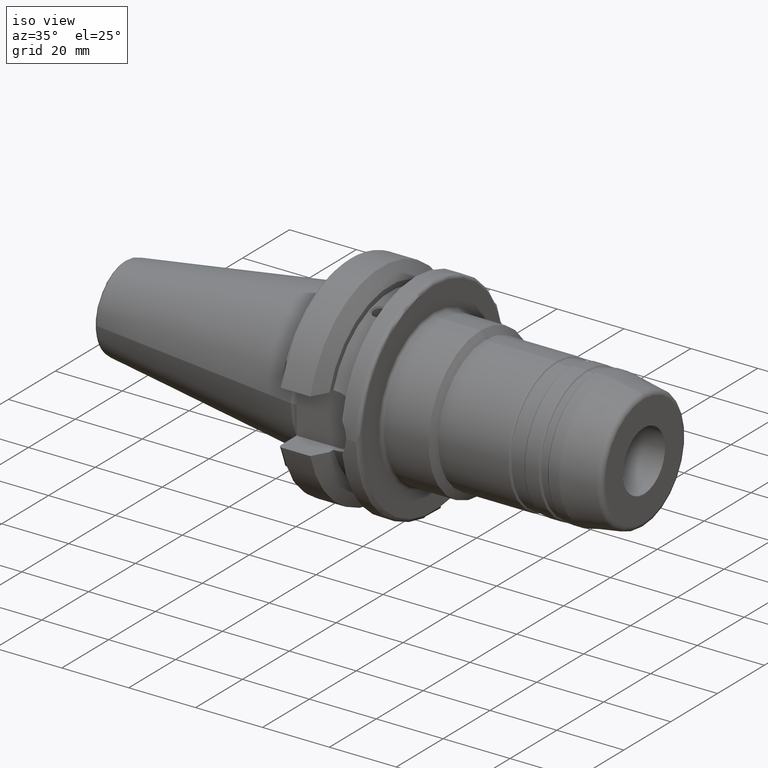
[diagram: clean part render]
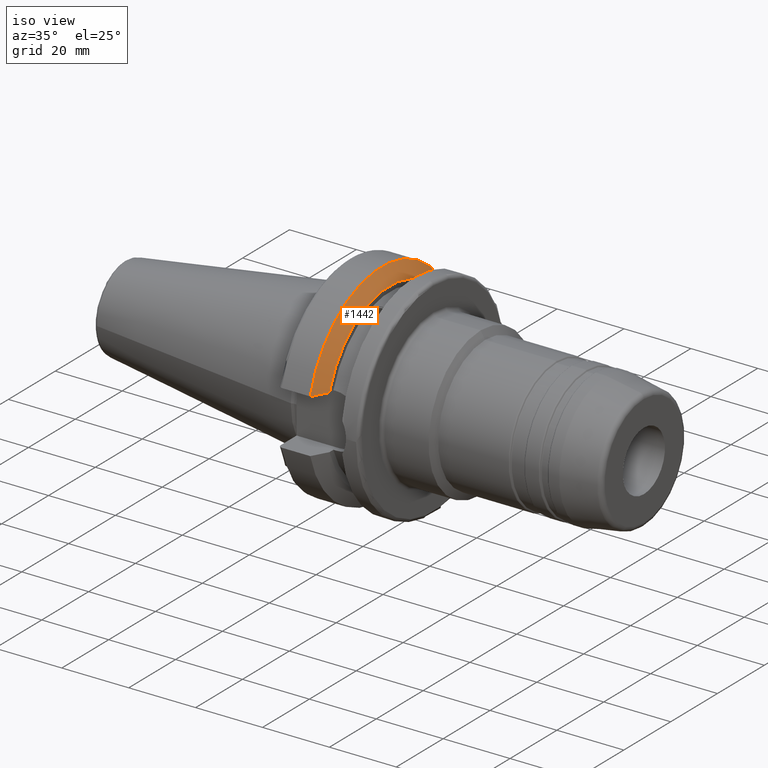
[diagram: same view with one face highlighted and labeled with its STEP entity id]
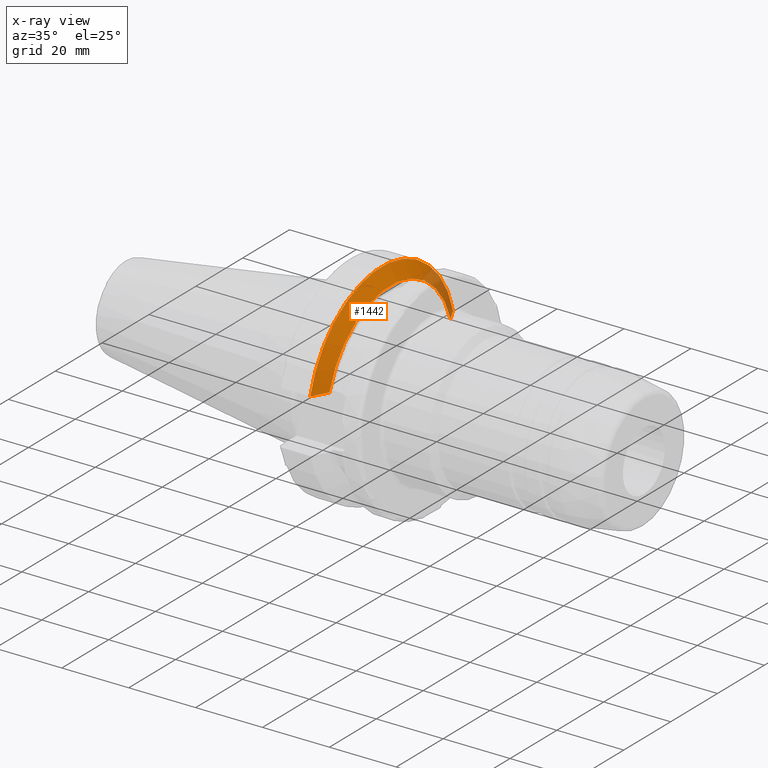
[diagram: x-ray of the same camera — body ghosted, the highlighted face saturated]
A machine part, iso view. The second image highlights one B-rep face of the part: STEP entity #1442.
The next image is the same camera in x-ray: the body ghosted, the highlighted face saturated — about 11% of this face is hidden behind the body in this view.
In plain terms, the highlighted conical surface has half-angle 60.125 deg.
Its self-contained STEP definition (entity closure, byte-faithful):
#15=(
BOUNDED_CURVE()
B_SPLINE_CURVE(2,(#2584,#2585,#2586),.UNSPECIFIED.,.F.,.F.)
B_SPLINE_CURVE_WITH_KNOTS((3,3),(0.,0.523582790832811),.UNSPECIFIED.)
CURVE()
GEOMETRIC_REPRESENTATION_ITEM()
RATIONAL_B_SPLINE_CURVE((1.,1.0030736009757,1.))
REPRESENTATION_ITEM('')
);
#18=(
BOUNDED_CURVE()
B_SPLINE_CURVE(2,(#2744,#2745,#2746),.UNSPECIFIED.,.F.,.F.)
B_SPLINE_CURVE_WITH_KNOTS((3,3),(0.,0.523582790832811),.UNSPECIFIED.)
CURVE()
GEOMETRIC_REPRESENTATION_ITEM()
RATIONAL_B_SPLINE_CURVE((1.,1.0030736009757,1.))
REPRESENTATION_ITEM('')
);
#91=CONICAL_SURFACE('',#1663,29.2970358274569,1.0493792127616);
#215=FACE_OUTER_BOUND('',#319,.T.);
#319=EDGE_LOOP('',(#1301,#1302,#1303,#1304));
#556=CIRCLE('',#1662,31.5000000000001);
#557=CIRCLE('',#1664,27.0940716549138);
#644=VERTEX_POINT('',#2581);
#645=VERTEX_POINT('',#2583);
#676=VERTEX_POINT('',#2741);
#677=VERTEX_POINT('',#2743);
#823=EDGE_CURVE('',#645,#644,#15,.T.);
#868=EDGE_CURVE('',#677,#676,#18,.T.);
#899=EDGE_CURVE('',#676,#645,#556,.T.);
#900=EDGE_CURVE('',#677,#644,#557,.T.);
#1301=ORIENTED_EDGE('',*,*,#823,.T.);
#1302=ORIENTED_EDGE('',*,*,#900,.F.);
#1303=ORIENTED_EDGE('',*,*,#868,.T.);
#1304=ORIENTED_EDGE('',*,*,#899,.T.);
#1442=ADVANCED_FACE('',(#215),#91,.T.);
#1662=AXIS2_PLACEMENT_3D('',#2809,#2128,#2129);
#1663=AXIS2_PLACEMENT_3D('',#2810,#2130,#2131);
#1664=AXIS2_PLACEMENT_3D('',#2811,#2132,#2133);
#2128=DIRECTION('center_axis',(1.,0.,0.));
#2129=DIRECTION('ref_axis',(0.,0.,-1.));
#2130=DIRECTION('center_axis',(-1.,0.,0.));
#2131=DIRECTION('ref_axis',(0.,1.,0.));
#2132=DIRECTION('center_axis',(1.,0.,0.));
#2133=DIRECTION('ref_axis',(0.,0.,-1.));
#2581=CARTESIAN_POINT('',(14.1,-25.8705666509569,8.05));
#2583=CARTESIAN_POINT('',(11.5690363073382,-30.4540227227866,8.05));
#2584=CARTESIAN_POINT('Ctrl Pts',(11.5690363073382,-30.4540227227866,8.05));
#2585=CARTESIAN_POINT('Ctrl Pts',(12.9374976962935,-27.9899702651817,8.05));
#2586=CARTESIAN_POINT('Ctrl Pts',(14.1,-25.8705666509569,8.05));
#2741=CARTESIAN_POINT('',(11.5690363073382,30.4540227227866,8.05));
#2743=CARTESIAN_POINT('',(14.1,25.8705666509569,8.05));
#2744=CARTESIAN_POINT('Ctrl Pts',(14.1,25.8705666509569,8.05));
#2745=CARTESIAN_POINT('Ctrl Pts',(12.9374976962935,27.9899702651817,8.05));
#2746=CARTESIAN_POINT('Ctrl Pts',(11.5690363073382,30.4540227227866,8.05));
#2809=CARTESIAN_POINT('Origin',(11.5690363073382,0.,0.));
#2810=CARTESIAN_POINT('Origin',(12.8345181536691,0.,0.));
#2811=CARTESIAN_POINT('Origin',(14.1,0.,0.));